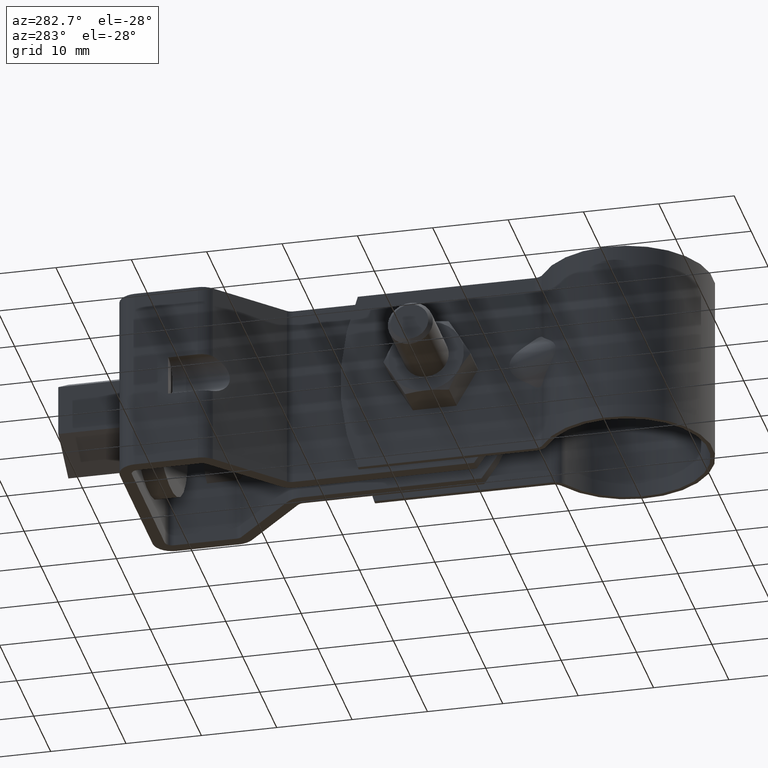
[diagram: clean part render]
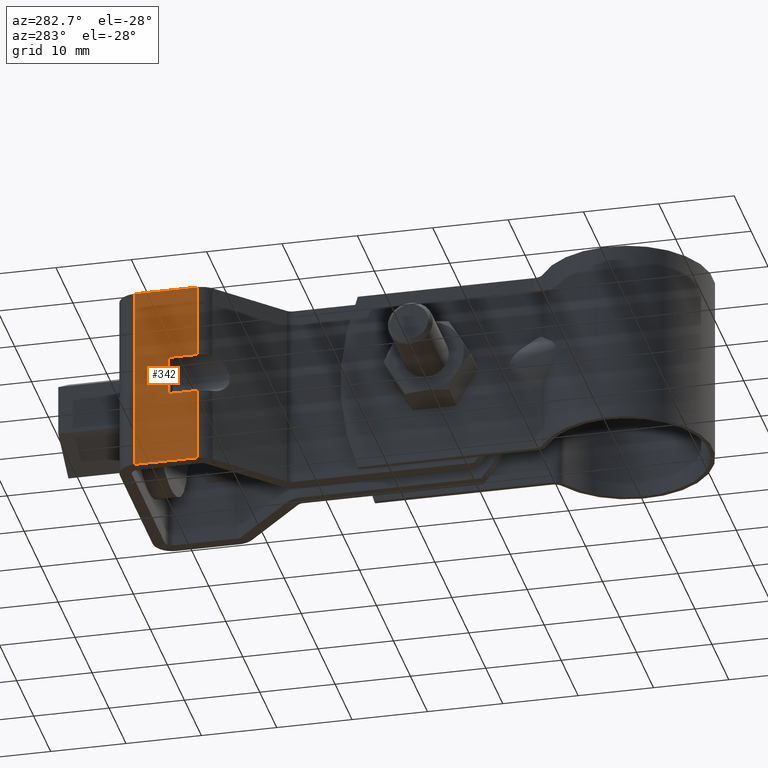
[diagram: same view with one face highlighted and labeled with its STEP entity id]
A machine part, auxiliary view. The second image highlights one B-rep face of the part: STEP entity #342.
In plain terms, the highlighted planar face has unit normal (-1, 0, 0).
Its self-contained STEP definition (entity closure, byte-faithful):
#342 = ADVANCED_FACE( '', ( #555 ), #556, .T. );
#555 = FACE_OUTER_BOUND( '', #827, .T. );
#556 = PLANE( '', #828 );
#827 = EDGE_LOOP( '', ( #1548, #1549, #1550, #1551, #1552, #1553, #1554, #1555 ) );
#828 = AXIS2_PLACEMENT_3D( '', #1556, #1557, #1558 );
#1548 = ORIENTED_EDGE( '', *, *, #2152, .T. );
#1549 = ORIENTED_EDGE( '', *, *, #2153, .T. );
#1550 = ORIENTED_EDGE( '', *, *, #2154, .F. );
#1551 = ORIENTED_EDGE( '', *, *, #2113, .F. );
#1552 = ORIENTED_EDGE( '', *, *, #2150, .T. );
#1553 = ORIENTED_EDGE( '', *, *, #2138, .T. );
#1554 = ORIENTED_EDGE( '', *, *, #2148, .F. );
#1555 = ORIENTED_EDGE( '', *, *, #2134, .F. );
#1556 = CARTESIAN_POINT( '', ( -12.2499999966666, 54.2186212063583, -12.4999987042929 ) );
#1557 = DIRECTION( '', ( -1.00000000000000, 1.39876275925575E-011, 1.87698705788703E-011 ) );
#1558 = DIRECTION( '', ( -1.39876277799465E-011, -1.00000000000000, -9.98350074832280E-009 ) );
#2113 = EDGE_CURVE( '', #2556, #2558, #2559, .T. );
#2134 = EDGE_CURVE( '', #2595, #2597, #2598, .T. );
#2138 = EDGE_CURVE( '', #2605, #2603, #2606, .T. );
#2148 = EDGE_CURVE( '', #2597, #2603, #2622, .T. );
#2150 = EDGE_CURVE( '', #2556, #2605, #2624, .T. );
#2152 = EDGE_CURVE( '', #2595, #2626, #2627, .T. );
#2153 = EDGE_CURVE( '', #2626, #2628, #2629, .T. );
#2154 = EDGE_CURVE( '', #2558, #2628, #2630, .T. );
#2556 = VERTEX_POINT( '', #3330 );
#2558 = VERTEX_POINT( '', #3332 );
#2559 = LINE( '', #3333, #3334 );
#2595 = VERTEX_POINT( '', #3380 );
#2597 = VERTEX_POINT( '', #3391 );
#2598 = LINE( '', #3392, #3393 );
#2603 = VERTEX_POINT( '', #3398 );
#2605 = VERTEX_POINT( '', #3400 );
#2606 = LINE( '', #3401, #3402 );
#2622 = LINE( '', #3439, #3440 );
#2624 = LINE( '', #3443, #3444 );
#2626 = VERTEX_POINT( '', #3447 );
#2627 = LINE( '', #3448, #3449 );
#2628 = VERTEX_POINT( '', #3450 );
#2629 = LINE( '', #3451, #3452 );
#2630 = LINE( '', #3453, #3454 );
#3330 = CARTESIAN_POINT( '', ( -12.2499999966666, 54.2186212063583, -12.4999987042929 ) );
#3332 = CARTESIAN_POINT( '', ( -12.2499999965504, 62.5228154072442, -12.4999986213880 ) );
#3333 = CARTESIAN_POINT( '', ( -12.2499999966666, 54.2186212063583, -12.4999987042929 ) );
#3334 = VECTOR( '', #4006, 1000.00000000000 );
#3380 = CARTESIAN_POINT( '', ( -12.2499999963822, 54.2186210551082, 2.65000129570708 ) );
#3391 = CARTESIAN_POINT( '', ( -12.2499999963276, 58.1228152559938, 2.65000133468461 ) );
#3392 = CARTESIAN_POINT( '', ( -12.2499999964675, 48.1228152559938, 2.65000123484960 ) );
#3393 = VECTOR( '', #4044, 1000.00000000000 );
#3398 = CARTESIAN_POINT( '', ( -12.2499999964271, 58.1228153089064, -2.64999866531533 ) );
#3400 = CARTESIAN_POINT( '', ( -12.2499999964817, 54.2186211080207, -2.64999870429286 ) );
#3401 = CARTESIAN_POINT( '', ( -12.2499999965670, 48.1228153089064, -2.64999876515035 ) );
#3402 = VECTOR( '', #4054, 1000.00000000000 );
#3439 = CARTESIAN_POINT( '', ( -12.2499999962976, 58.1228152400205, 4.25000133468460 ) );
#3440 = VECTOR( '', #4065, 1000.00000000000 );
#3443 = CARTESIAN_POINT( '', ( -12.2499999966666, 54.2186212063583, -12.4999987042929 ) );
#3444 = VECTOR( '', #4067, 1000.00000000000 );
#3447 = CARTESIAN_POINT( '', ( -12.2499999961973, 54.2186209567708, 12.5000012957071 ) );
#3448 = CARTESIAN_POINT( '', ( -12.2499999966666, 54.2186212063583, -12.4999987042929 ) );
#3449 = VECTOR( '', #4069, 1000.00000000000 );
#3450 = CARTESIAN_POINT( '', ( -12.2499999960812, 62.5228151576566, 12.5000013786120 ) );
#3451 = CARTESIAN_POINT( '', ( -12.2499999961973, 54.2186209567708, 12.5000012957071 ) );
#3452 = VECTOR( '', #4070, 1000.00000000000 );
#3453 = CARTESIAN_POINT( '', ( -12.2499999965504, 62.5228154072442, -12.4999986213880 ) );
#3454 = VECTOR( '', #4071, 1000.00000000000 );
#4006 = DIRECTION( '', ( 1.39876277799465E-011, 1.00000000000000, 9.98350074832280E-009 ) );
#4044 = DIRECTION( '', ( 1.39876277799465E-011, 1.00000000000000, 9.98350074832280E-009 ) );
#4054 = DIRECTION( '', ( 1.39876277799465E-011, 1.00000000000000, 9.98350074832280E-009 ) );
#4065 = DIRECTION( '', ( -1.87698722897608E-011, 9.98350074832307E-009, -1.00000000000000 ) );
#4067 = DIRECTION( '', ( 1.87698704392248E-011, -9.98350074832307E-009, 1.00000000000000 ) );
#4069 = DIRECTION( '', ( 1.87698704392248E-011, -9.98350074832307E-009, 1.00000000000000 ) );
#4070 = DIRECTION( '', ( 1.39876277799465E-011, 1.00000000000000, 9.98350074832280E-009 ) );
#4071 = DIRECTION( '', ( 1.87698704392248E-011, -9.98350074832307E-009, 1.00000000000000 ) );